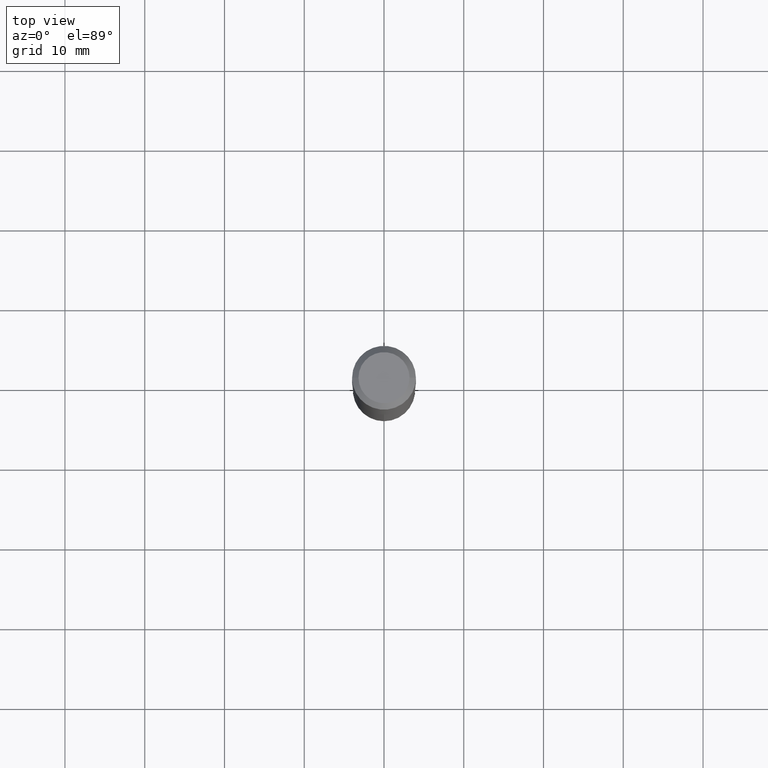
[diagram: clean part render]
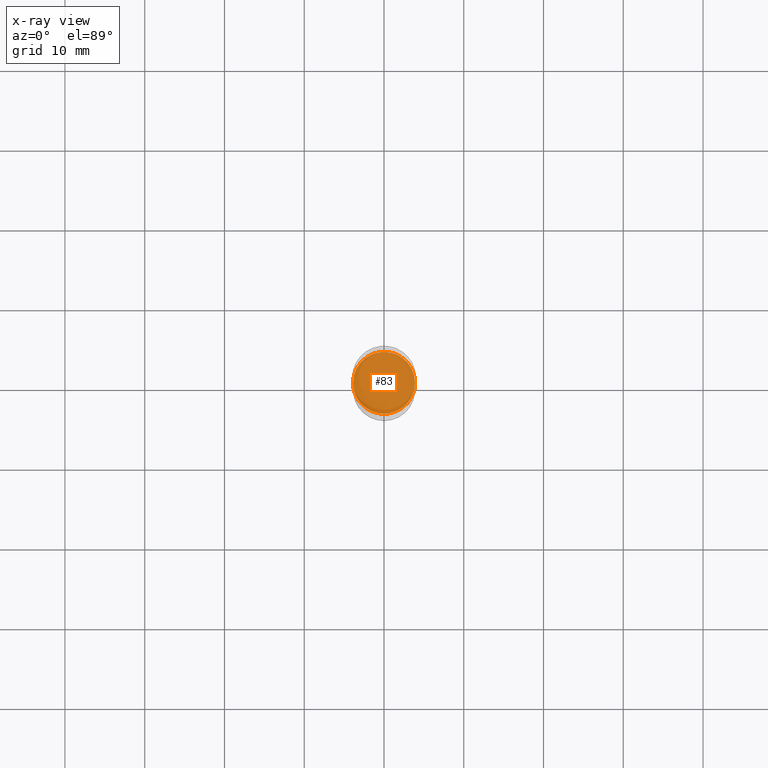
[diagram: x-ray — body ghosted, one internal face saturated and labeled with its STEP entity id]
A machine part, top view, then the same camera in x-ray: the body is ghosted and one INTERNAL B-rep face — a face not visible from any outside direction — is saturated and labeled: STEP entity #83.
In plain terms, the highlighted planar face has unit normal (-0, 0, 1).
Its self-contained STEP definition (entity closure, byte-faithful):
#10 = CIRCLE ( 'NONE', #19, 0.1530499999999999916 ) ;
#19 = AXIS2_PLACEMENT_3D ( 'NONE', #194, #341, #197 ) ;
#28 = EDGE_CURVE ( 'NONE', #477, #192, #245, .T. ) ;
#82 = CARTESIAN_POINT ( 'NONE',  ( 0.1530499999999999916, -6.293395113264767279E-15, -1.496400000000000396 ) ) ;
#83 = ADVANCED_FACE ( 'NONE', ( #186 ), #336, .F. ) ;
#88 = ORIENTED_EDGE ( 'NONE', *, *, #28, .F. ) ;
#92 = DIRECTION ( 'NONE',  ( -2.438088387897960049E-29, 3.491481338843145188E-15, 1.000000000000000000 ) ) ;
#116 = DIRECTION ( 'NONE',  ( 1.000000000000000000, -6.982962677686265922E-15, 0.000000000000000000 ) ) ;
#161 = CARTESIAN_POINT ( 'NONE',  ( 1.794263039509881988E-29, -7.895634274738714371E-15, -1.496400000000000396 ) ) ;
#186 = FACE_OUTER_BOUND ( 'NONE', #443, .T. ) ;
#192 = VERTEX_POINT ( 'NONE', #82 ) ;
#194 = CARTESIAN_POINT ( 'NONE',  ( 3.659399521575439863E-29, -5.224652675444884140E-15, -1.496400000000000396 ) ) ;
#197 = DIRECTION ( 'NONE',  ( 1.000000000000000000, -6.982962677686265922E-15, 0.000000000000000000 ) ) ;
#232 = DIRECTION ( 'NONE',  ( 1.000000000000000000, -6.982962677686265922E-15, 4.876176775795935793E-29 ) ) ;
#245 = CIRCLE ( 'NONE', #375, 0.1530499999999999916 ) ;
#275 = AXIS2_PLACEMENT_3D ( 'NONE', #161, #92, #232 ) ;
#319 = CARTESIAN_POINT ( 'NONE',  ( -0.1530499999999999916, -4.134517791189940256E-15, -1.496400000000000396 ) ) ;
#334 = ORIENTED_EDGE ( 'NONE', *, *, #409, .F. ) ;
#336 = PLANE ( 'NONE',  #275 ) ;
#341 = DIRECTION ( 'NONE',  ( -2.445468806185136597E-29, 3.491481338843145583E-15, 1.000000000000000000 ) ) ;
#373 = CARTESIAN_POINT ( 'NONE',  ( 3.659399521575439863E-29, -5.224652675444884140E-15, -1.496400000000000396 ) ) ;
#374 = DIRECTION ( 'NONE',  ( -2.445468806185136597E-29, 3.491481338843145583E-15, 1.000000000000000000 ) ) ;
#375 = AXIS2_PLACEMENT_3D ( 'NONE', #373, #374, #116 ) ;
#409 = EDGE_CURVE ( 'NONE', #192, #477, #10, .T. ) ;
#443 = EDGE_LOOP ( 'NONE', ( #334, #88 ) ) ;
#477 = VERTEX_POINT ( 'NONE', #319 ) ;